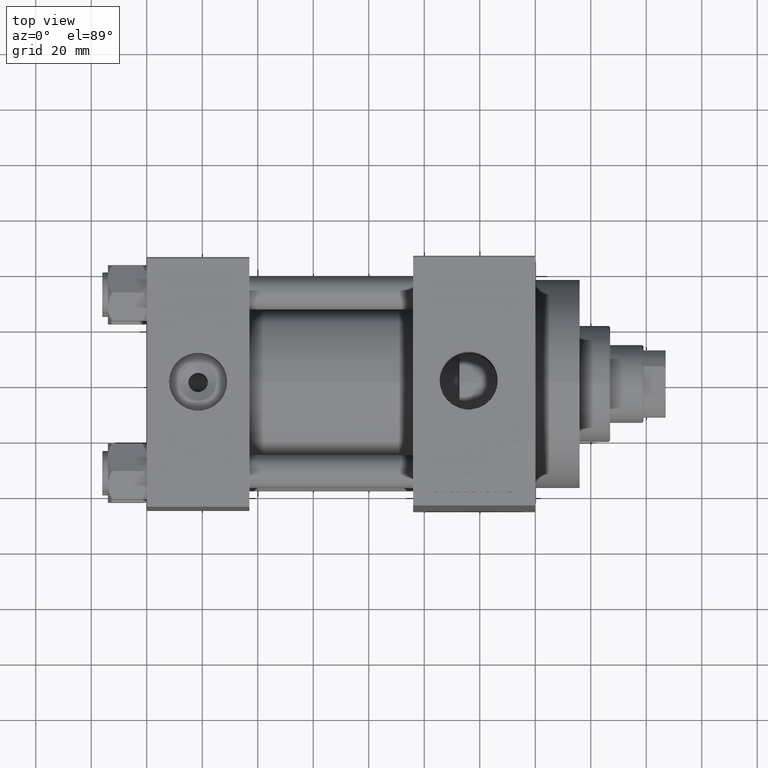
[diagram: clean part render]
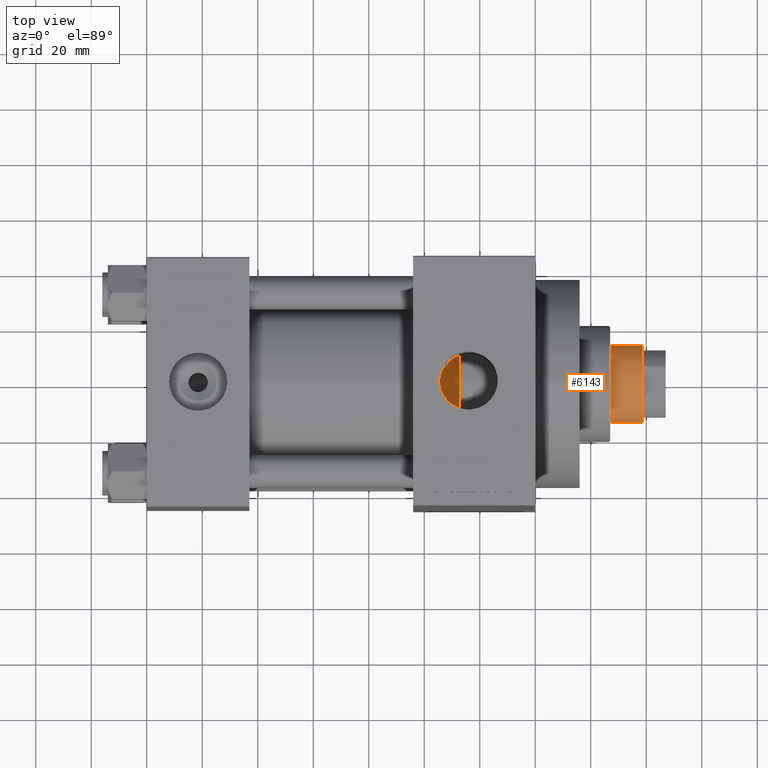
[diagram: same view with one face highlighted and labeled with its STEP entity id]
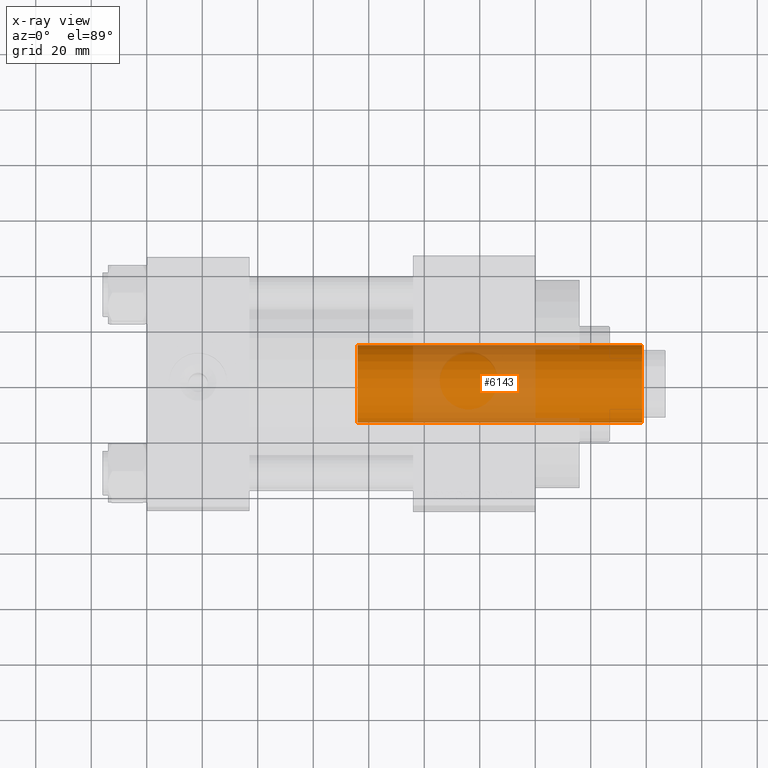
[diagram: x-ray of the same camera — body ghosted, the highlighted face saturated]
A machine part, top view. The second image highlights one B-rep face of the part: STEP entity #6143.
The next image is the same camera in x-ray: the body ghosted, the highlighted face saturated — about 34% of this face is hidden behind the body in this view.
In plain terms, the highlighted cylindrical surface (partial cylindrical patch) has radius 14 mm, axis along (-1, 0, 0).
Its self-contained STEP definition (entity closure, byte-faithful):
#453 = CARTESIAN_POINT ( 'NONE',  ( 0.000000000000000000, 0.000000000000000000, 141.5000000000000000 ) ) ;
#643 = CIRCLE ( 'NONE', #24298, 14.00000000000000000 ) ;
#2555 = CARTESIAN_POINT ( 'NONE',  ( 14.00000000000000000, 1.714505518806294638E-15, 142.0000000000000000 ) ) ;
#2629 = EDGE_CURVE ( 'NONE', #10808, #3893, #643, .T. ) ;
#2981 = ORIENTED_EDGE ( 'NONE', *, *, #45592, .F. ) ;
#3893 = VERTEX_POINT ( 'NONE', #45765 ) ;
#4889 = ORIENTED_EDGE ( 'NONE', *, *, #39585, .T. ) ;
#5803 = DIRECTION ( 'NONE',  ( 0.000000000000000000, 0.000000000000000000, 1.000000000000000000 ) ) ;
#6143 = ADVANCED_FACE ( 'NONE', ( #24864 ), #20838, .T. ) ;
#6974 = CARTESIAN_POINT ( 'NONE',  ( 0.000000000000000000, 0.000000000000000000, 142.0000000000000000 ) ) ;
#10129 = DIRECTION ( 'NONE',  ( -0.000000000000000000, -0.000000000000000000, -1.000000000000000000 ) ) ;
#10643 = AXIS2_PLACEMENT_3D ( 'NONE', #6974, #46616, #13909 ) ;
#10808 = VERTEX_POINT ( 'NONE', #16813 ) ;
#12228 = DIRECTION ( 'NONE',  ( 1.000000000000000000, 0.000000000000000000, 0.000000000000000000 ) ) ;
#13909 = DIRECTION ( 'NONE',  ( -1.000000000000000000, 0.000000000000000000, 0.000000000000000000 ) ) ;
#14649 = CARTESIAN_POINT ( 'NONE',  ( -14.00000000000000000, 0.000000000000000000, 142.0000000000000000 ) ) ;
#15014 = DIRECTION ( 'NONE',  ( 0.000000000000000000, 0.000000000000000000, -1.000000000000000000 ) ) ;
#15258 = AXIS2_PLACEMENT_3D ( 'NONE', #20354, #5803, #12228 ) ;
#15444 = VECTOR ( 'NONE', #39092, 1000.000000000000000 ) ;
#16813 = CARTESIAN_POINT ( 'NONE',  ( 14.00000000000000000, 1.714505518806294638E-15, 141.5000000000000000 ) ) ;
#20354 = CARTESIAN_POINT ( 'NONE',  ( 0.000000000000000000, 0.000000000000000000, 39.00000000000000000 ) ) ;
#20838 = CYLINDRICAL_SURFACE ( 'NONE', #10643, 14.00000000000000000 ) ;
#24298 = AXIS2_PLACEMENT_3D ( 'NONE', #453, #15014, #26453 ) ;
#24864 = FACE_OUTER_BOUND ( 'NONE', #34041, .T. ) ;
#25814 = VECTOR ( 'NONE', #10129, 1000.000000000000000 ) ;
#26453 = DIRECTION ( 'NONE',  ( 1.000000000000000000, 0.000000000000000000, 0.000000000000000000 ) ) ;
#28272 = VERTEX_POINT ( 'NONE', #28310 ) ;
#28309 = LINE ( 'NONE', #2555, #15444 ) ;
#28310 = CARTESIAN_POINT ( 'NONE',  ( -14.00000000000000000, 0.000000000000000000, 39.00000000000000000 ) ) ;
#32327 = VERTEX_POINT ( 'NONE', #33850 ) ;
#32775 = LINE ( 'NONE', #14649, #25814 ) ;
#33850 = CARTESIAN_POINT ( 'NONE',  ( 14.00000000000000000, 1.714505518806294638E-15, 39.00000000000000000 ) ) ;
#34041 = EDGE_LOOP ( 'NONE', ( #2981, #46577, #44845, #4889 ) ) ;
#34313 = CIRCLE ( 'NONE', #15258, 14.00000000000000000 ) ;
#36995 = EDGE_CURVE ( 'NONE', #3893, #28272, #32775, .T. ) ;
#39092 = DIRECTION ( 'NONE',  ( -0.000000000000000000, -0.000000000000000000, -1.000000000000000000 ) ) ;
#39585 = EDGE_CURVE ( 'NONE', #28272, #32327, #34313, .T. ) ;
#44845 = ORIENTED_EDGE ( 'NONE', *, *, #36995, .T. ) ;
#45592 = EDGE_CURVE ( 'NONE', #10808, #32327, #28309, .T. ) ;
#45765 = CARTESIAN_POINT ( 'NONE',  ( -14.00000000000000000, 0.000000000000000000, 141.5000000000000000 ) ) ;
#46577 = ORIENTED_EDGE ( 'NONE', *, *, #2629, .T. ) ;
#46616 = DIRECTION ( 'NONE',  ( -0.000000000000000000, -0.000000000000000000, -1.000000000000000000 ) ) ;